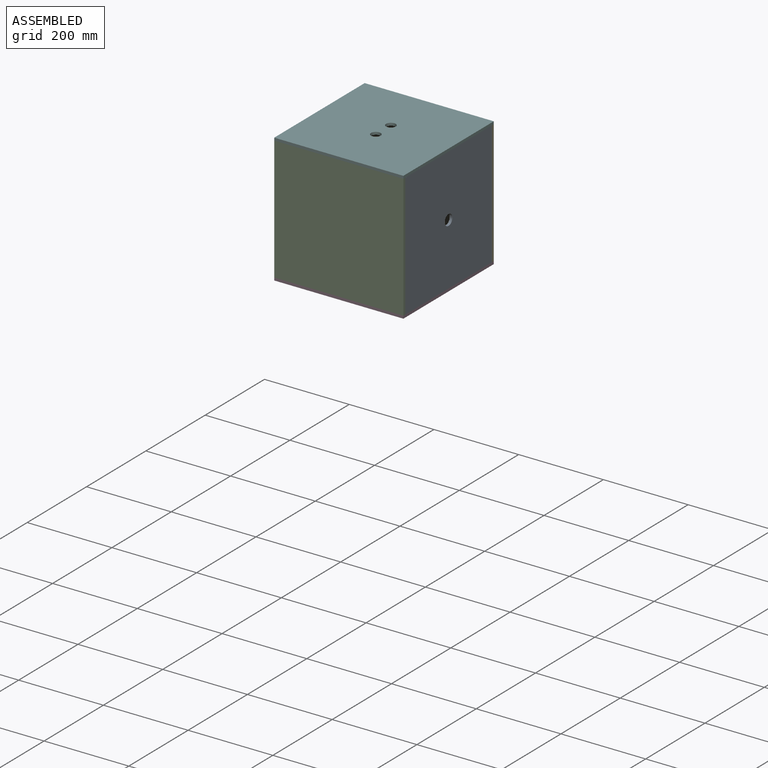
[diagram: assembled view]
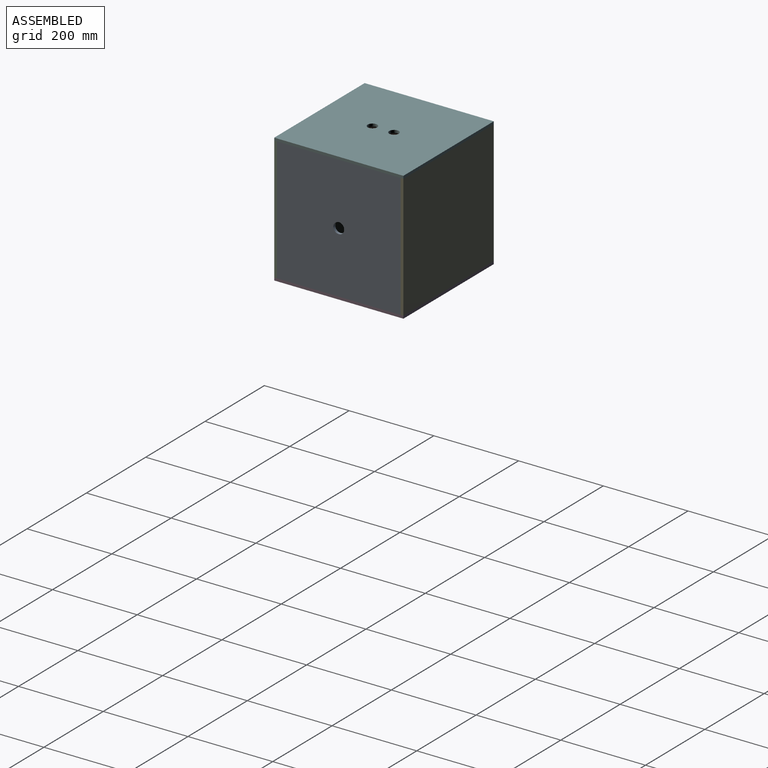
[diagram: assembled view, second angle]
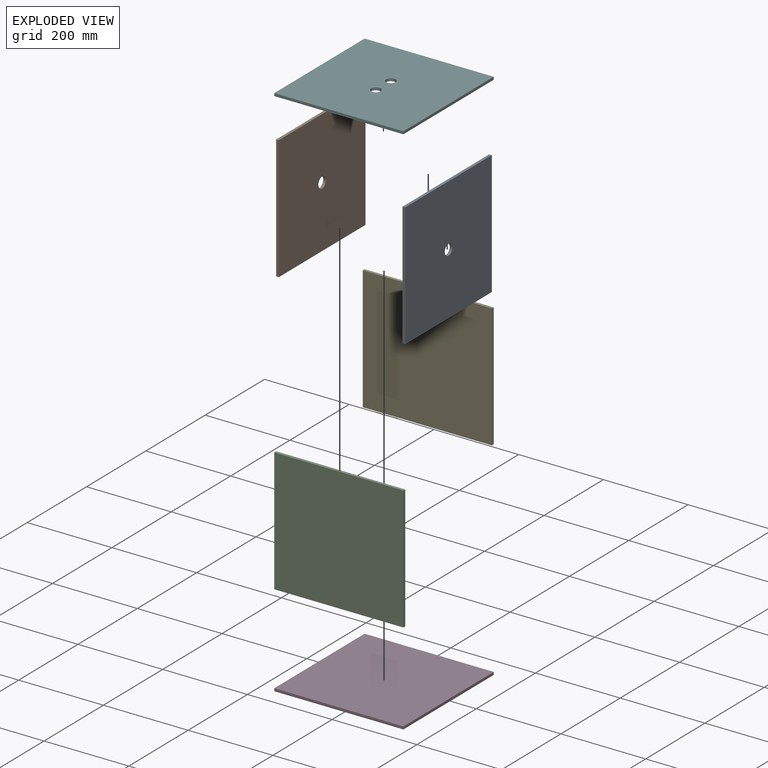
[diagram: exploded view]
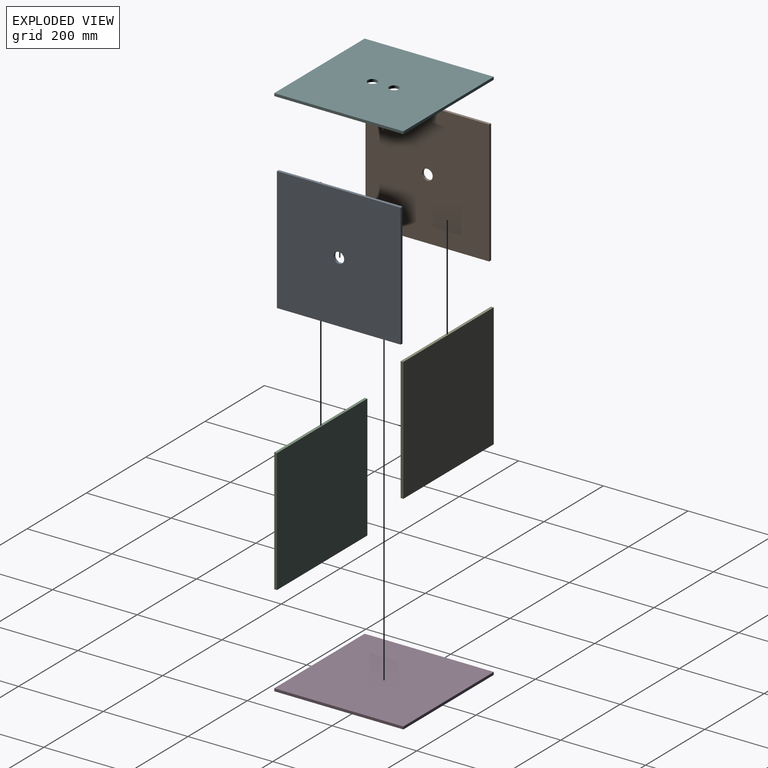
[diagram: exploded view, second angle]
ASSEMBLY  parts=6 mates=10
PART A: 7 faces, bbox 6.4x292.1x292.1 mm
  f0: plane 292.1x6.35mm, normal (0,0,-1), area 1854.8mm2, adj f1,f4,f5,f6
  f1: plane 292.1x6.35mm, normal (0,1,0), area 1854.8mm2, adj f0,f2,f5,f6
  f2: plane 292.1x6.35mm, normal (0,0,1), area 1854.8mm2, adj f1,f4,f5,f6
  f3: cylinder r=12.7mm len=25.4mm, axis (-1,0,0), area 506.7mm2, adj f5,f6
  f4: plane 292.1x6.35mm, normal (0,-1,0), area 1854.8mm2, adj f0,f2,f5,f6
  f5: plane 292.1x292.1mm, normal (1,0,0), area 84815.7mm2, adj f0,f1,f2,f3,f4
  f6: plane 292.1x292.1mm, normal (-1,0,0), area 84815.7mm2, adj f0,f1,f2,f3,f4
PART B: same geometry as A
PART C: 6 faces, bbox 304.8x6.4x292.1 mm
  f0: plane 304.8x6.35mm, normal (0,0,-1), area 1935.5mm2, adj f1,f3,f4,f5
  f1: plane 292.1x6.35mm, normal (1,0,0), area 1854.8mm2, adj f0,f2,f4,f5
  f2: plane 304.8x6.35mm, normal (0,0,1), area 1935.5mm2, adj f1,f3,f4,f5
  f3: plane 292.1x6.35mm, normal (-1,0,0), area 1854.8mm2, adj f0,f2,f4,f5
  f4: plane 304.8x292.1mm, normal (0,-1,0), area 89032.1mm2, adj f0,f1,f2,f3
  f5: plane 304.8x292.1mm, normal (0,1,0), area 89032.1mm2, adj f0,f1,f2,f3
PART D: 6 faces, bbox 304.8x304.8x6.4 mm
  f0: plane 304.8x6.35mm, normal (1,0,0), area 1935.5mm2, adj f1,f3,f4,f5
  f1: plane 304.8x6.35mm, normal (0,1,0), area 1935.5mm2, adj f0,f2,f4,f5
  f2: plane 304.8x6.35mm, normal (-1,0,0), area 1935.5mm2, adj f1,f3,f4,f5
  f3: plane 304.8x6.35mm, normal (0,-1,0), area 1935.5mm2, adj f0,f2,f4,f5
  f4: plane 304.8x304.8mm, normal (0,0,1), area 92903mm2, adj f0,f1,f2,f3
  f5: plane 304.8x304.8mm, normal (0,0,-1), area 92903mm2, adj f0,f1,f2,f3
PART E: same geometry as C
PART F: 8 faces, bbox 304.8x304.8x6.4 mm
  f0: plane 304.8x6.35mm, normal (0,-1,0), area 1935.5mm2, adj f1,f5,f6,f7
  f1: plane 304.8x6.35mm, normal (1,0,0), area 1935.5mm2, adj f0,f2,f6,f7
  f2: plane 304.8x6.35mm, normal (0,1,0), area 1935.5mm2, adj f1,f5,f6,f7
  f3: cylinder r=11.23mm len=22.46mm, axis (0,0,-1), area 448.1mm2, adj f6,f7
  f4: cylinder r=11.23mm len=22.46mm, axis (0,0,-1), area 448.1mm2, adj f6,f7
  f5: plane 304.8x6.35mm, normal (-1,0,0), area 1935.5mm2, adj f0,f2,f6,f7
  f6: plane 304.8x304.8mm, normal (0,0,1), area 92110.4mm2, adj f0,f1,f2,f3,f4,f5
  f7: plane 304.8x304.8mm, normal (0,0,-1), area 92110.4mm2, adj f0,f1,f2,f3,f4,f5
PLACE A t=(142.36,-19.85,-23.58)mm
PLACE B t=(-156.09,-19.85,-23.58)mm
PLACE C t=(6.84,-165.9,-23.58)mm
PLACE D t=(-3.69,-19.85,-175.98)mm
PLACE E t=(6.84,132.55,-23.58)mm
PLACE F t=(-3.69,-19.85,122.47)mm
MATE planar F.f7 <-> E.f2  axis (0,0,-1) through (-3.69,-19.84,122.47)mm
MATE fastened C.f1 <-> A.f5  axis (1,0,0) through (148.71,-165.9,122.47)mm
MATE fastened E.f3 <-> B.f6  axis (-1,0,0) through (-156.09,126.2,122.47)mm
MATE fastened F.f7 <-> E.f2  axis (0,0,-1) through (148.71,132.55,122.47)mm
MATE planar F.f7 <-> B.f2  axis (0,0,-1) through (-3.69,-19.84,122.47)mm
MATE fastened E.f0 <-> D.f4  axis (0,0,-1) through (-156.09,132.55,-169.63)mm
MATE fastened F.f7 <-> C.f2  axis (0,0,-1) through (148.71,-172.25,122.47)mm
MATE planar F.f7 <-> A.f2  axis (0,0,-1) through (-3.69,-19.84,122.47)mm
MATE planar D.f4 <-> A.f0  axis (0,0,1) through (-3.69,-19.85,-169.63)mm
MATE planar F.f7 <-> C.f2  axis (0,0,-1) through (-3.69,-19.84,122.47)mm
